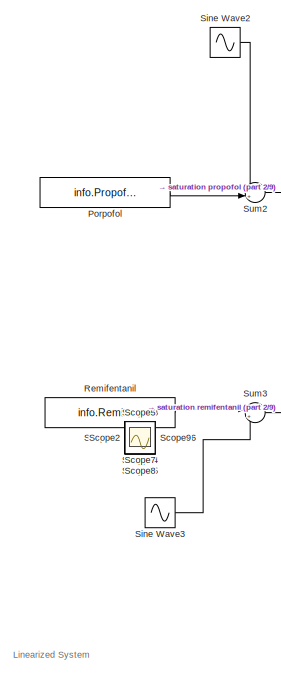
[diagram: root canvas - part 1/9, top left region]
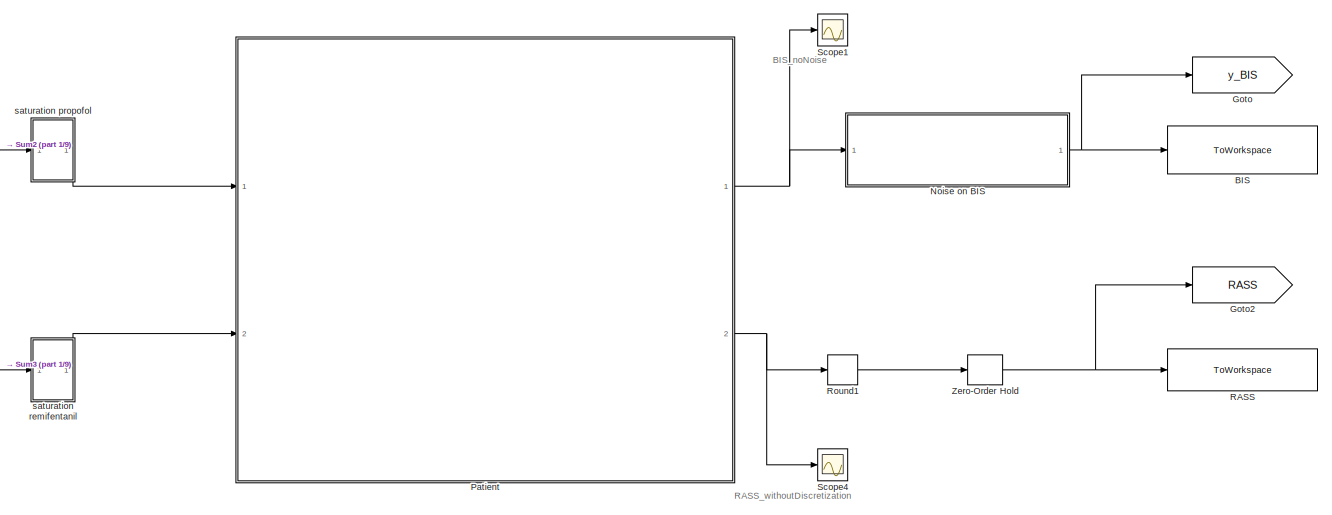
[diagram: root canvas - part 2/9, top right region]
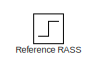
[diagram: root canvas - part 3/9, top left region]
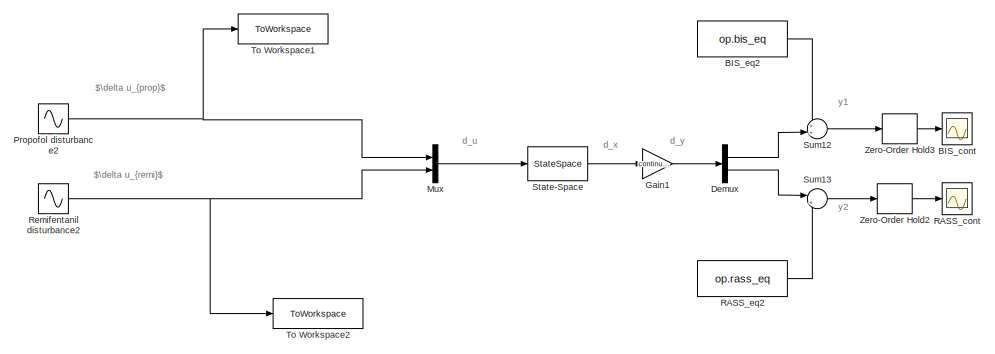
[diagram: root canvas - part 4/9, top center region]
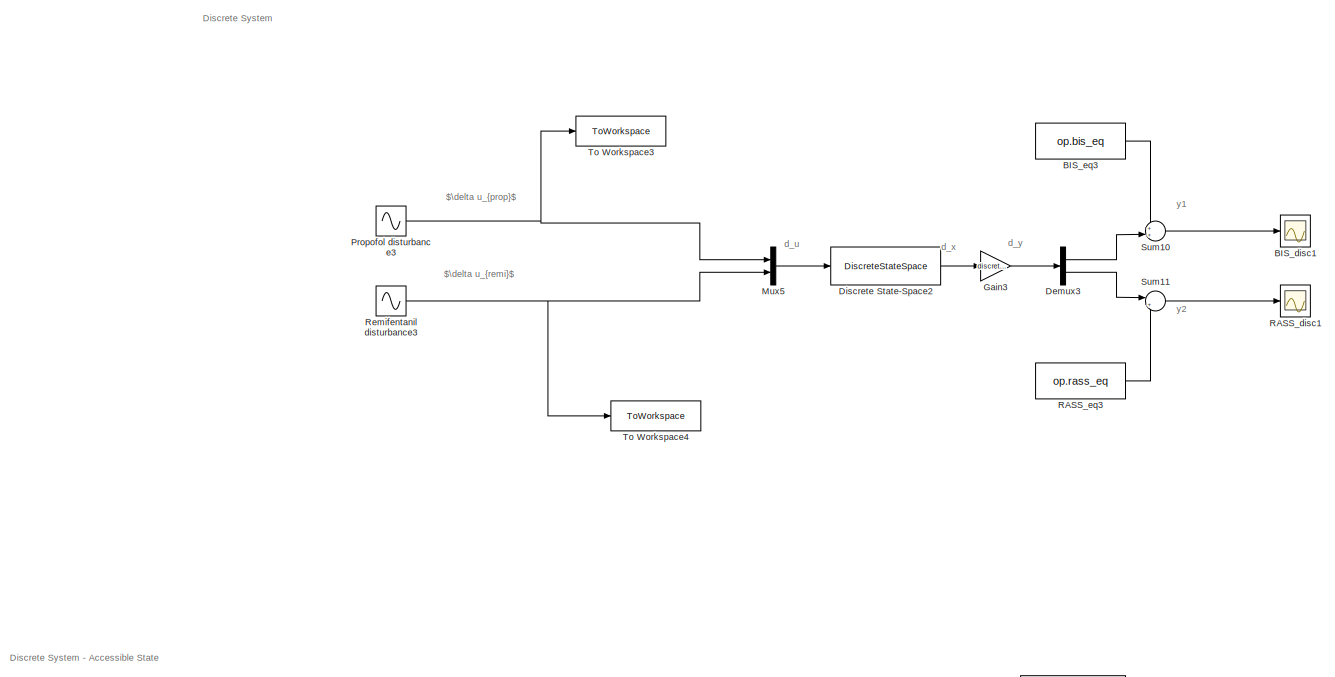
[diagram: root canvas - part 5/9, central region]
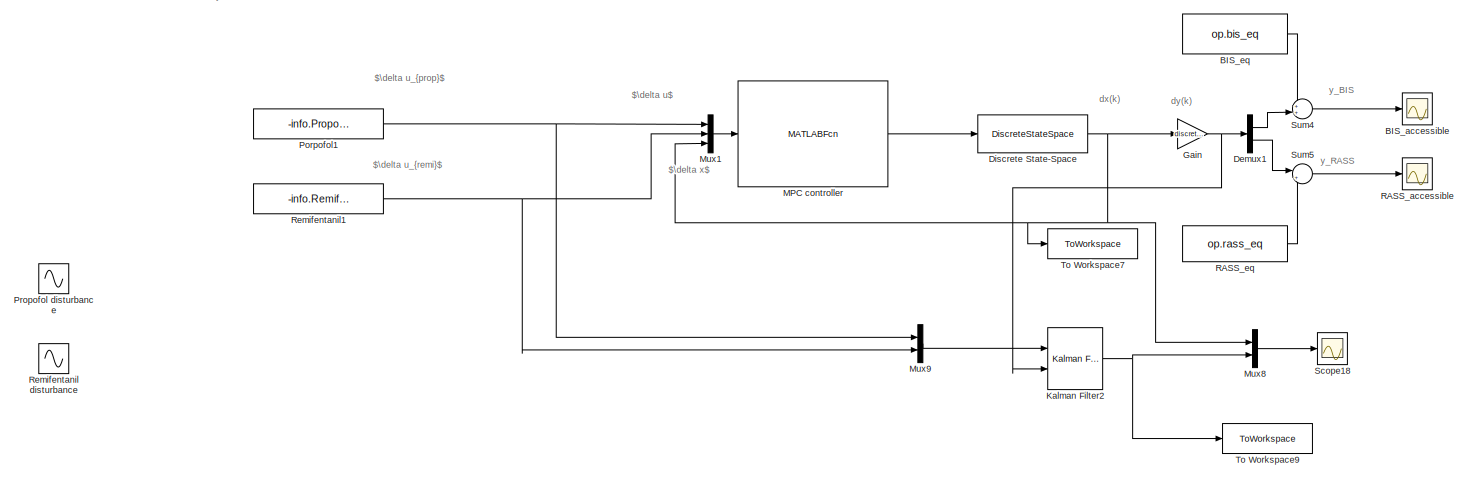
[diagram: root canvas - part 6/9, central region]
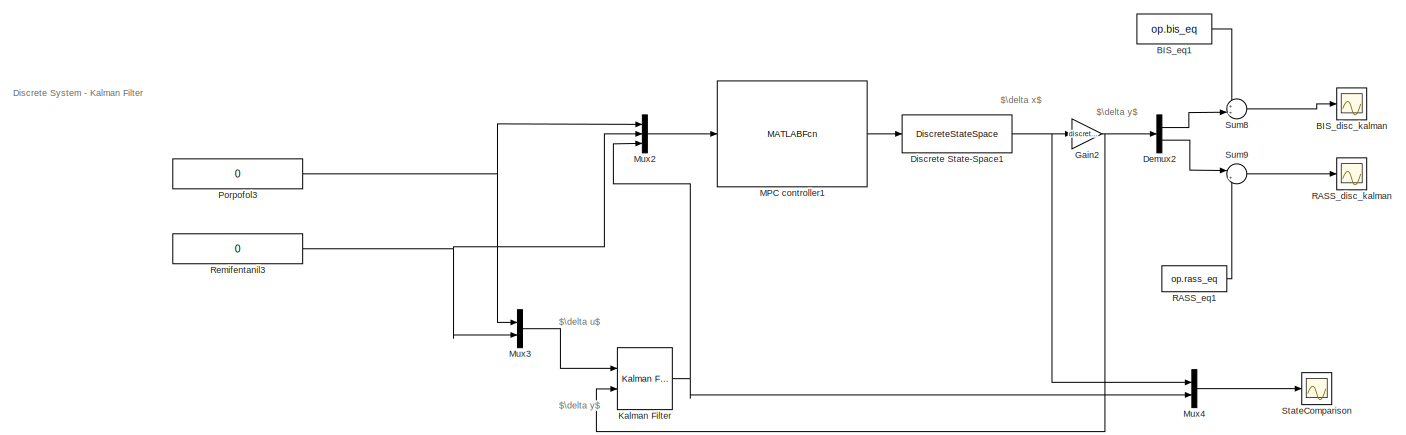
[diagram: root canvas - part 7/9, bottom center region]
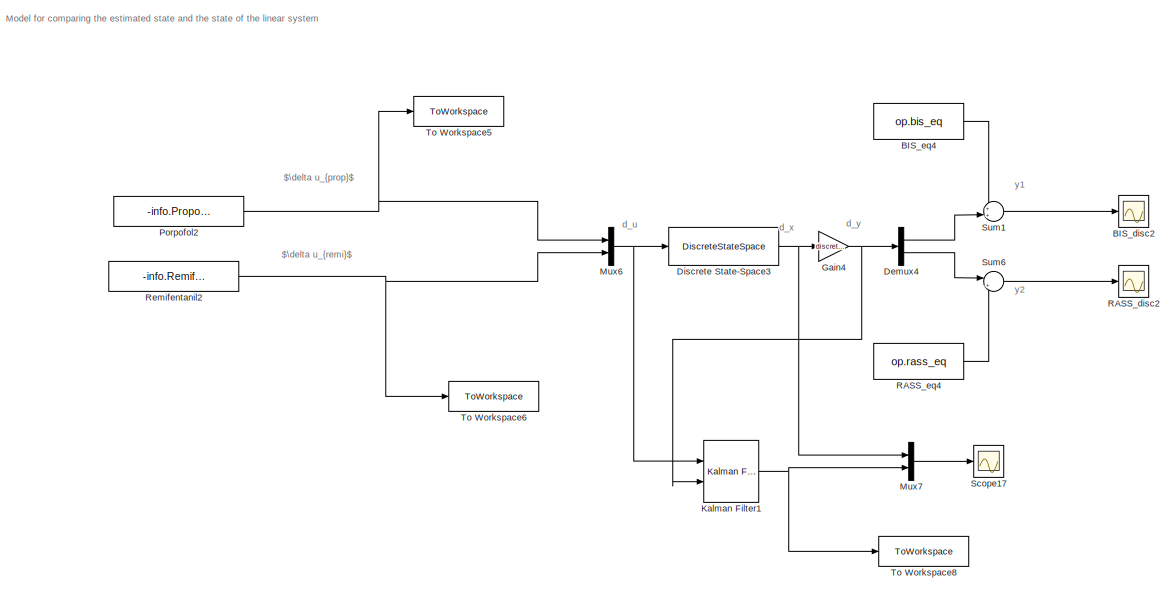
[diagram: root canvas - part 8/9, bottom center region]
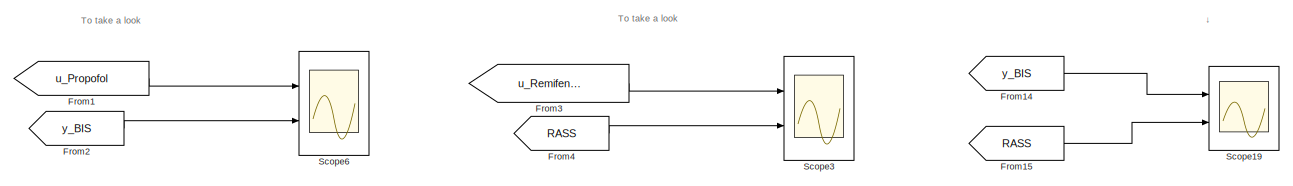
[diagram: root canvas - part 9/9, bottom left region]
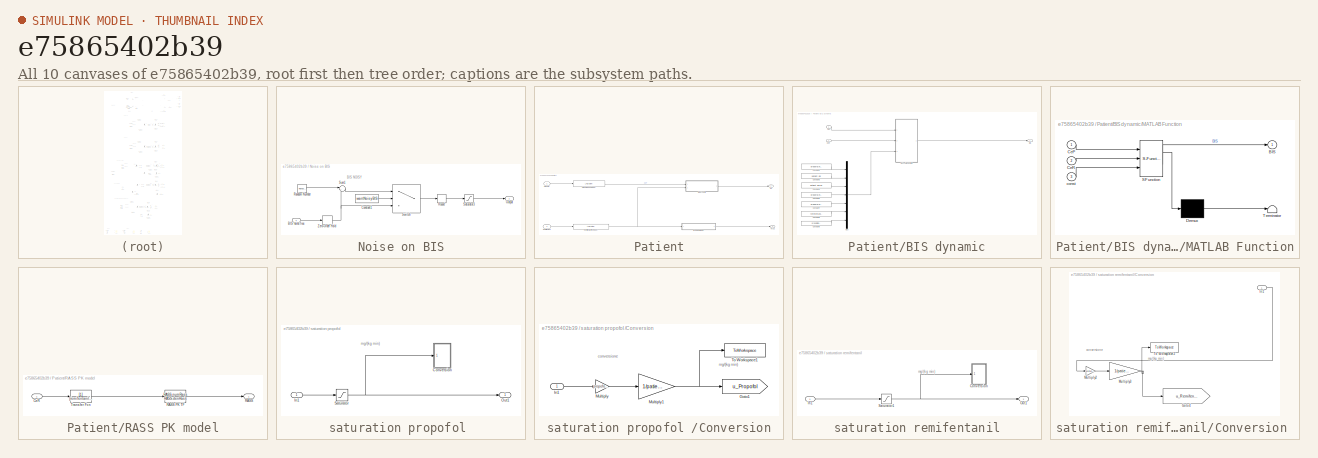
[diagram: thumbnail index - all 10 canvases of the model, root first then tree order]
MODEL slx_e75865402b39
KIND model
CONFIG AbsTol = auto
CONFIG EnableMultiTasking = off
CONFIG FixedStep = 0.1
CONFIG MaxStep = auto
CONFIG MinStep = auto
CONFIG RelTol = 1e-15
CONFIG SampleTimeConstraint = Unconstrained
CONFIG SolverName = ode4
CONFIG StartTime = 0.0
CONFIG StopTime = info.Tsim
BLOCK [ToWorkspace] BIS
  FixptAsFi = on
  MaxDataPoints = inf
  Ports = [1]
  SampleTime = 1
  Save2DSignal = 2-D array (concatenate along first dimension)
  VariableName = BIS_output
BLOCK [Scope] BIS_accessible
  Floating = off
  NumInputPorts = 1
  Ports = [1]
  ScopeSpecificationString = Simulink.scopes.TimeScopeBlockCfg('CurrentConfiguration', extmgr.ConfigurationSet(extmgr.Configuration('Core','General UI',true),extmgr.Configuration('Core','Source UI',true),extmgr.Configuration('Sources','WiredSimulink',true,'DataLoggingVariableName','BIS_accessible','DataLogging',true,'DataLoggingSaveFormat','StructureWithTime'),extmgr.Configuration('Visuals','Time Domain',true,'SerializedDispl...<+1440ch>
BLOCK [Scope] BIS_cont
  Floating = off
  NumInputPorts = 1
  Ports = [1]
  ScopeSpecificationString = Simulink.scopes.TimeScopeBlockCfg('CurrentConfiguration', extmgr.ConfigurationSet(extmgr.Configuration('Core','General UI',true),extmgr.Configuration('Core','Source UI',true),extmgr.Configuration('Sources','WiredSimulink',true,'DataLoggingVariableName','BIS_cont','DataLogging',true,'DataLoggingSaveFormat','StructureWithTime'),extmgr.Configuration('Visuals','Time Domain',true,'SerializedDisplays',{...<+1438ch>
BLOCK [Scope] BIS_disc1
  Floating = off
  NumInputPorts = 1
  Ports = [1]
  ScopeSpecificationString = Simulink.scopes.TimeScopeBlockCfg('CurrentConfiguration', extmgr.ConfigurationSet(extmgr.Configuration('Core','General UI',true),extmgr.Configuration('Core','Source UI',true),extmgr.Configuration('Sources','WiredSimulink',true,'DataLoggingVariableName','BIS_linDisc','DataLogging',true,'DataLoggingSaveFormat','StructureWithTime'),extmgr.Configuration('Visuals','Time Domain',true,'SerializedDisplays...<+1441ch>
BLOCK [Scope] BIS_disc2
  Commented = on
  Floating = off
  NumInputPorts = 1
  Ports = [1]
  ScopeSpecificationString = Simulink.scopes.TimeScopeBlockCfg('CurrentConfiguration', extmgr.ConfigurationSet(extmgr.Configuration('Core','General UI',true),extmgr.Configuration('Core','Source UI',true),extmgr.Configuration('Sources','WiredSimulink',true,'DataLoggingVariableName','aaa','DataLogging',true,'DataLoggingSaveFormat','StructureWithTime'),extmgr.Configuration('Visuals','Time Domain',true,'SerializedDisplays',{struc...<+1421ch>
BLOCK [Scope] BIS_disc_kalman
  Floating = off
  NumInputPorts = 1
  Ports = [1]
  ScopeSpecificationString = Simulink.scopes.TimeScopeBlockCfg('CurrentConfiguration', extmgr.ConfigurationSet(extmgr.Configuration('Core','General UI',true),extmgr.Configuration('Core','Source UI',true),extmgr.Configuration('Sources','WiredSimulink',true,'DataLoggingVariableName','BIS_kalman','DataLogging',true,'DataLoggingSaveFormat','StructureWithTime'),extmgr.Configuration('Visuals','Time Domain',true,'SerializedDisplays'...<+1436ch>
BLOCK [Constant] BIS_eq
  Value = op.bis_eq
BLOCK [Constant] BIS_eq1
  Value = op.bis_eq
BLOCK [Constant] BIS_eq2
  Value = op.bis_eq
BLOCK [Constant] BIS_eq3
  SampleTime = info.Ts
  Value = op.bis_eq
BLOCK [Constant] BIS_eq4
  Commented = on
  SampleTime = info.Ts
  Value = op.bis_eq
BLOCK [Demux] Demux
  Outputs = 2
  Ports = [1, 2]
BLOCK [Demux] Demux1
  Outputs = 2
  Ports = [1, 2]
BLOCK [Demux] Demux2
  Outputs = 2
  Ports = [1, 2]
BLOCK [Demux] Demux3
  Outputs = 2
  Ports = [1, 2]
BLOCK [Demux] Demux4
  Commented = on
  Outputs = 2
  Ports = [1, 2]
BLOCK [DiscreteStateSpace] Discrete State-Space
  A = discreteModel.A
  B = discreteModel.B
  C = eye(size(discreteModel.A))
  D = zeros(size(discreteModel.A,1),size(discreteModel.B,2))
  InitialCondition = [0,0,0,-0.5584,-2,0,0,0,0,0]'
  SampleTime = info.Ts
BLOCK [DiscreteStateSpace] Discrete State-Space1
  A = discreteModel.A
  B = discreteModel.B
  C = eye(size(discreteModel.A))
  D = zeros(size(discreteModel.A,1),size(discreteModel.B,2))
  InitialCondition = [0,0,0,-0.5584,-2,0,0,0,0,0]
  SampleTime = info.Ts
BLOCK [DiscreteStateSpace] Discrete State-Space2
  A = discreteModel.A
  B = discreteModel.B
  C = eye(size(discreteModel.A))
  D = zeros(size(discreteModel.A,1),size(discreteModel.B,2))
  InitialCondition = [0,0,0,-0.5584,-2,0,0,0,0,0]'
  SampleTime = info.Ts
BLOCK [DiscreteStateSpace] Discrete State-Space3
  A = discreteModel.A
  B = discreteModel.B
  C = eye(size(discreteModel.A))
  Commented = on
  D = zeros(size(discreteModel.A,1),size(discreteModel.B,2))
  SampleTime = info.Ts
BLOCK [From] From1
  GotoTag = u_Propofol
  TagVisibility = global
BLOCK [From] From14
  GotoTag = y_BIS
  TagVisibility = global
BLOCK [From] From15
  GotoTag = RASS
  TagVisibility = global
BLOCK [From] From2
  GotoTag = y_BIS
  TagVisibility = global
BLOCK [From] From3
  GotoTag = u_Remifentanil
  TagVisibility = global
BLOCK [From] From4
  GotoTag = RASS
  TagVisibility = global
BLOCK [Gain] Gain
  Gain = discreteModel.C
  Multiplication = Matrix(K*u)
BLOCK [Gain] Gain1
  Gain = continuousModel.C
  Multiplication = Matrix(K*u)
BLOCK [Gain] Gain2
  Gain = discreteModel.C
  Multiplication = Matrix(K*u)
BLOCK [Gain] Gain3
  Gain = discreteModel.C
  Multiplication = Matrix(K*u)
BLOCK [Gain] Gain4
  Commented = on
  Gain = discreteModel.C
  Multiplication = Matrix(K*u)
BLOCK [Goto] Goto
  GotoTag = y_BIS
  TagVisibility = global
BLOCK [Goto] Goto2
  GotoTag = RASS
  TagVisibility = global
BLOCK [Reference] Kalman Filter  REF=ctrlSharedLib/Kalman Filter
  Ports = [2, 1]
  SourceBlock = ctrlSharedLib/Kalman Filter
  SourceProductBaseCode = CT,ID
  SourceType = ctrlKalmanFilter
BLOCK [Reference] Kalman Filter1  REF=ctrlSharedLib/Kalman Filter
  Commented = on
  Ports = [2, 1]
  SourceBlock = ctrlSharedLib/Kalman Filter
  SourceProductBaseCode = CT,ID
  SourceType = ctrlKalmanFilter
BLOCK [Reference] Kalman Filter2  REF=ctrlSharedLib/Kalman Filter
  Ports = [2, 1]
  SourceBlock = ctrlSharedLib/Kalman Filter
  SourceProductBaseCode = CT,ID
  SourceType = ctrlKalmanFilter
BLOCK [MATLABFcn] MPC controller
  MATLABFcn = myMPC_dist(u,condDiscMat,PH)
  OutputDimensions = 2
  Ports = [1, 1]
BLOCK [MATLABFcn] MPC controller1
  MATLABFcn = myMPC_dist(u,kalmDiscMat,PH)
  OutputDimensions = 2
  Ports = [1, 1]
BLOCK [Mux] Mux
  DisplayOption = bar
  Inputs = 2
  Ports = [2, 1]
BLOCK [Mux] Mux1
  DisplayOption = bar
  Inputs = 3
  Ports = [3, 1]
BLOCK [Mux] Mux2
  DisplayOption = bar
  Inputs = 3
  Ports = [3, 1]
BLOCK [Mux] Mux3
  DisplayOption = bar
  Inputs = 2
  Ports = [2, 1]
BLOCK [Mux] Mux4
  DisplayOption = bar
  Inputs = 2
  Ports = [2, 1]
BLOCK [Mux] Mux5
  DisplayOption = bar
  Inputs = 2
  Ports = [2, 1]
BLOCK [Mux] Mux6
  Commented = on
  DisplayOption = bar
  Inputs = 2
  Ports = [2, 1]
BLOCK [Mux] Mux7
  Commented = on
  DisplayOption = bar
  Inputs = 2
  Ports = [2, 1]
BLOCK [Mux] Mux8
  DisplayOption = bar
  Inputs = 2
  Ports = [2, 1]
BLOCK [Mux] Mux9
  DisplayOption = bar
  Inputs = 2
  Ports = [2, 1]
BLOCK [SubSystem] Noise on BIS
  Ports = [1, 1]
  RequestExecContextInheritance = off
BLOCK [Inport] Noise on BIS/BIS noise free
BLOCK [Constant] Noise on BIS/Constant1
  Value = wantNoisyBIS
BLOCK [Outport] Noise on BIS/Output
BLOCK [RandomNumber] Noise on BIS/Random Number
  SampleTime = info.Ts
  Variance = 6.27
BLOCK [Rounding] Noise on BIS/Round
  Operator = round
BLOCK [Saturate] Noise on BIS/Saturator3
  LowerLimit = 0
  UpperLimit = 100
BLOCK [Sum] Noise on BIS/Sum1
  Inputs = |++
  Ports = [2, 1]
BLOCK [Switch] Noise on BIS/Switch
  Criteria = u2 > Threshold
  InputSameDT = off
  SaturateOnIntegerOverflow = off
  Threshold = 0.5
BLOCK [ZeroOrderHold] Noise on BIS/Zero-Order Hold
  SampleTime = info.Ts
BLOCK [SubSystem] Patient
  Ports = [2, 2]
  RequestExecContextInheritance = off
BLOCK [Outport] Patient/BIS
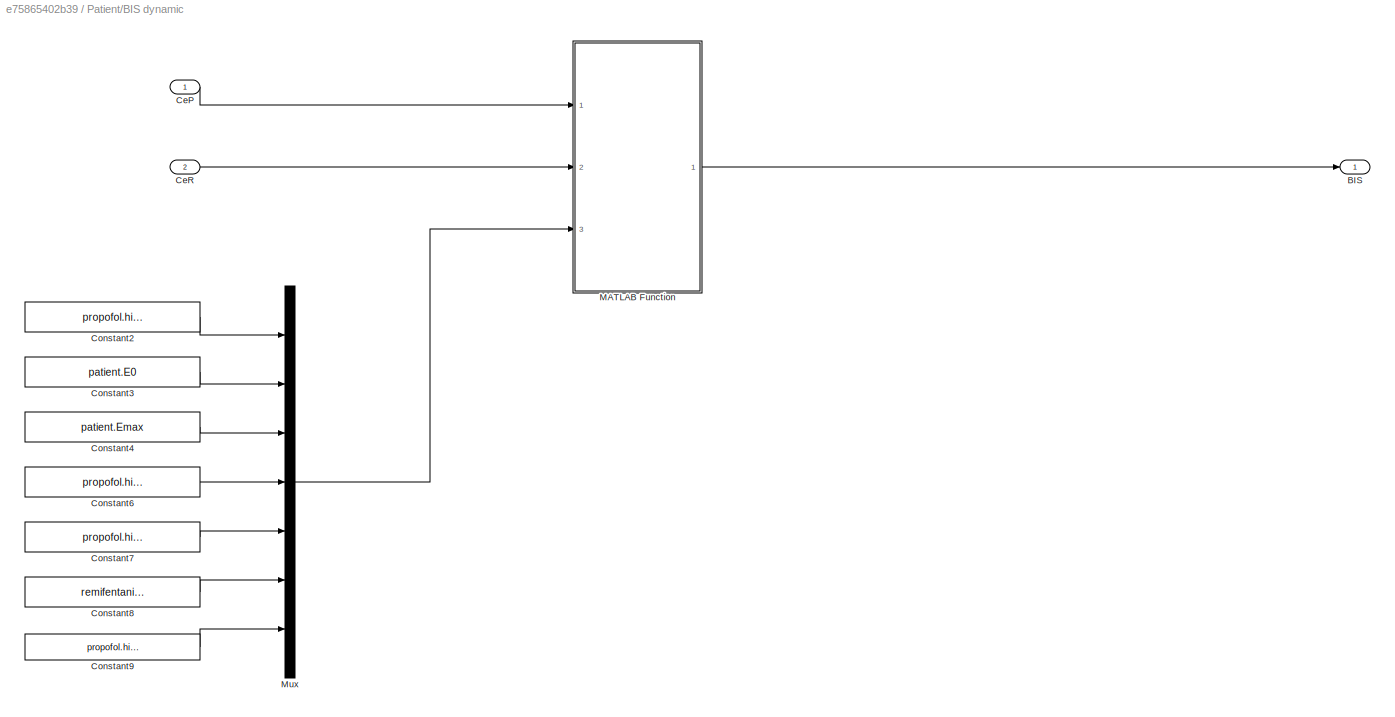
BLOCK [SubSystem] Patient/BIS dynamic
  Ports = [2, 1]
  RequestExecContextInheritance = off
BLOCK [Outport] Patient/BIS dynamic/BIS
BLOCK [Inport] Patient/BIS dynamic/CeP
BLOCK [Inport] Patient/BIS dynamic/CeR
  Port = 2
BLOCK [Constant] Patient/BIS dynamic/Constant2
  Value = propofol.hill_Propofol.beta
BLOCK [Constant] Patient/BIS dynamic/Constant3
  Value = patient.E0
BLOCK [Constant] Patient/BIS dynamic/Constant4
  Value = patient.Emax
BLOCK [Constant] Patient/BIS dynamic/Constant6
  Value = propofol.hill_Propofol.gamma
BLOCK [Constant] Patient/BIS dynamic/Constant7
  Value = propofol.hill_Propofol.C50P
BLOCK [Constant] Patient/BIS dynamic/Constant8
  Value = remifentanil.hill_Remifentanil.C50R
BLOCK [Constant] Patient/BIS dynamic/Constant9
  Value = propofol.hill_Propofol.sigma
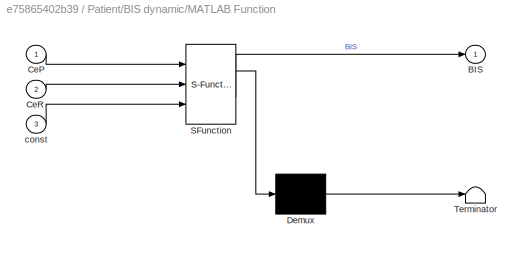
BLOCK [SubSystem] Patient/BIS dynamic/MATLAB Function
  ErrorFcn = Stateflow.Translate.translate
  PermitHierarchicalResolution = ExplicitOnly
  Ports = [3, 1]
  RequestExecContextInheritance = off
  SFBlockType = MATLAB Function
  TreatAsAtomicUnit = on
BLOCK [Demux] Patient/BIS dynamic/MATLAB Function/ Demux 
  Outputs = 1
  Ports = [1, 1]
BLOCK [S-Function] Patient/BIS dynamic/MATLAB Function/ SFunction 
  EnableBusSupport = on
  FunctionName = sf_sfun
  PortCounts = [3 2]
  Ports = [3, 2]
  SFcnIsStateOwnerBlock = off
  SFunctionDeploymentMode = off
  Tag = Stateflow S-Function 2
BLOCK [Terminator] Patient/BIS dynamic/MATLAB Function/ Terminator 
BLOCK [Outport] Patient/BIS dynamic/MATLAB Function/BIS
BLOCK [Inport] Patient/BIS dynamic/MATLAB Function/CeP
BLOCK [Inport] Patient/BIS dynamic/MATLAB Function/CeR
  Port = 2
BLOCK [Inport] Patient/BIS dynamic/MATLAB Function/const
  Port = 3
BLOCK [Mux] Patient/BIS dynamic/Mux
  DisplayOption = bar
  Inputs = 7
  Ports = [7, 1]
BLOCK [Inport] Patient/Propofol
BLOCK [Reference] Patient/Propofol SS PK model  REF=cstblocks/LTI System
  Ports = [1, 1]
  SourceBlock = cstblocks/LTI System
  SourceProductBaseCode = CT
  SourceType = LTI Block
BLOCK [Outport] Patient/RASS
  Port = 2
BLOCK [SubSystem] Patient/RASS PK model
  Ports = [1, 1]
  RequestExecContextInheritance = off
BLOCK [Inport] Patient/RASS PK model/CeR
BLOCK [Outport] Patient/RASS PK model/RASS
BLOCK [TransferFcn] Patient/RASS PK model/RASS PK TF
  Denominator = RASS.denRass
  Numerator = RASS.numRass
BLOCK [TransferFcn] Patient/RASS PK model/Transfer Fcn
  Denominator = [remifentanil.k1r*15 remifentanil.k0r]
BLOCK [Inport] Patient/Remifentanil
  Port = 2
BLOCK [Reference] Patient/Remifentanil PK model  REF=cstblocks/LTI System
  Ports = [1, 1]
  SourceBlock = cstblocks/LTI System
  SourceProductBaseCode = CT
  SourceType = LTI Block
BLOCK [Constant] Porpofol
  SampleTime = info.Ts
  Value = info.PropofolDose
BLOCK [Constant] Porpofol1
  SampleTime = info.Ts
  Value = -info.PropofolDose
BLOCK [Constant] Porpofol2
  Commented = on
  SampleTime = info.Ts
  Value = -info.PropofolDose
BLOCK [Constant] Porpofol3
  SampleTime = info.Ts
  Value = 0
BLOCK [Sin] Propofol disturbance
  Amplitude = 0.3*op.propofol_eq
  Commented = on
  Frequency = 1/500
  Ports = [0, 1]
  SampleTime = info.Ts
BLOCK [Sin] Propofol disturbance2
  Amplitude = 0.3*op.propofol_eq
  Frequency = 1/500
  Ports = [0, 1]
  SampleTime = 0
BLOCK [Sin] Propofol disturbance3
  Amplitude = 0.3*op.propofol_eq
  Frequency = 1/500
  Ports = [0, 1]
  SampleTime = info.Ts
BLOCK [ToWorkspace] RASS
  FixptAsFi = on
  MaxDataPoints = inf
  Ports = [1]
  SampleTime = 1
  Save2DSignal = 2-D array (concatenate along first dimension)
  VariableName = RASS_output
BLOCK [Scope] RASS_accessible
  Floating = off
  NumInputPorts = 1
  Ports = [1]
  ScopeSpecificationString = Simulink.scopes.TimeScopeBlockCfg('CurrentConfiguration', extmgr.ConfigurationSet(extmgr.Configuration('Core','General UI',true),extmgr.Configuration('Core','Source UI',true),extmgr.Configuration('Sources','WiredSimulink',true,'DataLoggingVariableName','RASS_accessible','DataLogging',true,'DataLoggingSaveFormat','StructureWithTime'),extmgr.Configuration('Visuals','Time Domain',true,'SerializedDisp...<+1499ch>
BLOCK [Scope] RASS_cont
  Floating = off
  NumInputPorts = 1
  Ports = [1]
  ScopeSpecificationString = Simulink.scopes.TimeScopeBlockCfg('CurrentConfiguration', extmgr.ConfigurationSet(extmgr.Configuration('Core','General UI',true),extmgr.Configuration('Core','Source UI',true),extmgr.Configuration('Sources','WiredSimulink',true,'DataLoggingVariableName','RASS_cont','DataLogging',true,'DataLoggingSaveFormat','StructureWithTime'),extmgr.Configuration('Visuals','Time Domain',true,'SerializedDisplays',...<+1428ch>
BLOCK [Scope] RASS_disc1
  Floating = off
  NumInputPorts = 1
  Ports = [1]
  ScopeSpecificationString = Simulink.scopes.TimeScopeBlockCfg('CurrentConfiguration', extmgr.ConfigurationSet(extmgr.Configuration('Core','General UI',true),extmgr.Configuration('Core','Source UI',true),extmgr.Configuration('Sources','WiredSimulink',true,'DataLoggingVariableName','RASS_linDisc','DataLogging',true,'DataLoggingSaveFormat','StructureWithTime'),extmgr.Configuration('Visuals','Time Domain',true,'SerializedDisplay...<+1442ch>
BLOCK [Scope] RASS_disc2
  Commented = on
  Floating = off
  NumInputPorts = 1
  Ports = [1]
  ScopeSpecificationString = Simulink.scopes.TimeScopeBlockCfg('CurrentConfiguration', extmgr.ConfigurationSet(extmgr.Configuration('Core','General UI',true),extmgr.Configuration('Core','Source UI',true),extmgr.Configuration('Sources','WiredSimulink',true,'DataLoggingVariableName','bbb','DataLogging',true,'DataLoggingSaveFormat','StructureWithTime'),extmgr.Configuration('Visuals','Time Domain',true,'SerializedDisplays',{struc...<+1421ch>
BLOCK [Scope] RASS_disc_kalman
  Floating = off
  NumInputPorts = 1
  Ports = [1]
  ScopeSpecificationString = Simulink.scopes.TimeScopeBlockCfg('CurrentConfiguration', extmgr.ConfigurationSet(extmgr.Configuration('Core','General UI',true),extmgr.Configuration('Core','Source UI',true),extmgr.Configuration('Sources','WiredSimulink',true,'DataLoggingVariableName','RASS_kalman','DataLogging',true,'DataLoggingSaveFormat','StructureWithTime'),extmgr.Configuration('Visuals','Time Domain',true,'SerializedDisplays...<+1427ch>
BLOCK [Constant] RASS_eq
  Value = op.rass_eq
BLOCK [Constant] RASS_eq1
  Value = op.rass_eq
BLOCK [Constant] RASS_eq2
  Value = op.rass_eq
BLOCK [Constant] RASS_eq3
  SampleTime = info.Ts
  Value = op.rass_eq
BLOCK [Constant] RASS_eq4
  Commented = on
  SampleTime = info.Ts
  Value = op.rass_eq
BLOCK [Step] Reference RASS
  After = info.desired_RASS
  Before = info.initial_RASS
  Commented = on
  SampleTime = info.Ts
  Time = info.T_induction
BLOCK [Constant] Remifentanil
  SampleTime = info.Ts
  Value = info.RemifentanilDose
BLOCK [Sin] Remifentanil disturbance
  Amplitude = 0.3*op.remifentanil_eq
  Commented = on
  Frequency = 1/700
  Ports = [0, 1]
  SampleTime = info.Ts
BLOCK [Sin] Remifentanil disturbance2
  Amplitude = 0.3*op.remifentanil_eq
  Frequency = 1/700
  Ports = [0, 1]
  SampleTime = 0
BLOCK [Sin] Remifentanil disturbance3
  Amplitude = 0.3*op.remifentanil_eq
  Frequency = 1/700
  Ports = [0, 1]
  SampleTime = info.Ts
BLOCK [Constant] Remifentanil1
  SampleTime = info.Ts
  Value = -info.RemifentanilDose
BLOCK [Constant] Remifentanil2
  Commented = on
  SampleTime = info.Ts
  Value = -info.RemifentanilDose
BLOCK [Constant] Remifentanil3
  SampleTime = info.Ts
  Value = 0
BLOCK [Rounding] Round1
  Operator = round
BLOCK [Scope] Scope
  Floating = off
  IOType = viewer
  NumInputPorts = 1
  Ports = []
  ScopeSpecificationString = Simulink.scopes.TimeScopeBlockCfg('CurrentConfiguration', extmgr.ConfigurationSet(extmgr.Configuration('Core','General UI',true),extmgr.Configuration('Core','Source UI',true),extmgr.Configuration('Sources','WiredSimulink',true,'DataLoggingVariableName','ScopeData2'),extmgr.Configuration('Visuals','Time Domain',true),extmgr.Configuration('Tools','Plot Navigation',true),extmgr.Configuration('Tools',...<+58ch>
BLOCK [Scope] Scope1
  Floating = off
  NumInputPorts = 1
  Ports = [1]
  ScopeSpecificationString = Simulink.scopes.TimeScopeBlockCfg('CurrentConfiguration', extmgr.ConfigurationSet(extmgr.Configuration('Core','General UI',true),extmgr.Configuration('Core','Source UI',true),extmgr.Configuration('Sources','WiredSimulink',true,'DataLoggingVariableName','BIS_noNoise','DataLogging',true,'DataLoggingSaveFormat','StructureWithTime'),extmgr.Configuration('Visuals','Time Domain',true,'SerializedDisplays...<+1444ch>
BLOCK [Scope] Scope10
  Floating = off
  IOType = viewer
  NumInputPorts = 1
  Ports = []
  ScopeSpecificationString = Simulink.scopes.TimeScopeBlockCfg('CurrentConfiguration', extmgr.ConfigurationSet(extmgr.Configuration('Core','General UI',true),extmgr.Configuration('Core','Source UI',true),extmgr.Configuration('Sources','WiredSimulink',true,'DataLoggingVariableName','ScopeData1'),extmgr.Configuration('Visuals','Time Domain',true,'SerializedDisplays',{struct('MinYLimReal','-5.26886','MaxYLimReal','0.58543','YLab...<+1368ch>
BLOCK [Scope] Scope11
  Floating = off
  IOType = viewer
  NumInputPorts = 1
  Ports = []
  ScopeSpecificationString = Simulink.scopes.TimeScopeBlockCfg('CurrentConfiguration', extmgr.ConfigurationSet(extmgr.Configuration('Core','General UI',true),extmgr.Configuration('Core','Source UI',true),extmgr.Configuration('Sources','WiredSimulink',true,'DataLoggingVariableName','ScopeData2'),extmgr.Configuration('Visuals','Time Domain',true,'SerializedDisplays',{struct('MinYLimReal','5.22642','MaxYLimReal','8.96225','YLabe...<+1421ch>
BLOCK [Scope] Scope12
  Floating = off
  IOType = viewer
  NumInputPorts = 1
  Ports = []
  ScopeSpecificationString = Simulink.scopes.TimeScopeBlockCfg('CurrentConfiguration', extmgr.ConfigurationSet(extmgr.Configuration('Core','General UI',true),extmgr.Configuration('Core','Source UI',true),extmgr.Configuration('Sources','WiredSimulink',true,'DataLoggingVariableName','ScopeData3'),extmgr.Configuration('Visuals','Time Domain',true,'SerializedDisplays',{struct('MinYLimReal','64.8','MaxYLimReal','81.68889','YLabelR...<+1435ch>
BLOCK [Scope] Scope13
  Floating = off
  IOType = viewer
  NumInputPorts = 1
  Ports = []
  ScopeSpecificationString = Simulink.scopes.TimeScopeBlockCfg('CurrentConfiguration', extmgr.ConfigurationSet(extmgr.Configuration('Core','General UI',true),extmgr.Configuration('Core','Source UI',true),extmgr.Configuration('Sources','WiredSimulink',true,'DataLoggingVariableName','ScopeData4'),extmgr.Configuration('Visuals','Time Domain',true,'SerializedDisplays',{struct('MinYLimReal','2.13004','MaxYLimReal','97.54111','YLab...<+1370ch>
BLOCK [Scope] Scope14
  Floating = off
  IOType = viewer
  NumInputPorts = 1
  Ports = []
  ScopeSpecificationString = Simulink.scopes.TimeScopeBlockCfg('CurrentConfiguration', extmgr.ConfigurationSet(extmgr.Configuration('Core','General UI',true),extmgr.Configuration('Core','Source UI',true),extmgr.Configuration('Sources','WiredSimulink',true,'DataLoggingVariableName','ScopeData1'),extmgr.Configuration('Visuals','Time Domain',true,'SerializedDisplays',{struct('MinYLimReal','45.32083','MaxYLimReal','96.07546','YLa...<+1381ch>
BLOCK [Scope] Scope15
  Floating = off
  IOType = viewer
  NumInputPorts = 1
  Ports = []
  ScopeSpecificationString = Simulink.scopes.TimeScopeBlockCfg('CurrentConfiguration', extmgr.ConfigurationSet(extmgr.Configuration('Core','General UI',true),extmgr.Configuration('Core','Source UI',true),extmgr.Configuration('Sources','WiredSimulink',true,'DataLoggingVariableName','ScopeData2'),extmgr.Configuration('Visuals','Time Domain',true,'SerializedDisplays',{struct('MinYLimReal','59.51732','MaxYLimReal','88.94252','YLa...<+1425ch>
BLOCK [Scope] Scope16
  Floating = off
  IOType = viewer
  NumInputPorts = 1
  Ports = []
  ScopeSpecificationString = Simulink.scopes.TimeScopeBlockCfg('CurrentConfiguration', extmgr.ConfigurationSet(extmgr.Configuration('Core','General UI',true),extmgr.Configuration('Core','Source UI',true),extmgr.Configuration('Sources','WiredSimulink',true,'DataLoggingVariableName','ScopeData3'),extmgr.Configuration('Visuals','Time Domain',true,'SerializedDisplays',{struct('MinYLimReal','5.22642','MaxYLimReal','8.96225','YLabe...<+1384ch>
BLOCK [Scope] Scope17
  Commented = on
  Floating = off
  NumInputPorts = 1
  Ports = [1]
  ScopeSpecificationString = Simulink.scopes.TimeScopeBlockCfg('CurrentConfiguration', extmgr.ConfigurationSet(extmgr.Configuration('Core','General UI',true),extmgr.Configuration('Core','Source UI',true),extmgr.Configuration('Sources','WiredSimulink',true,'DataLoggingVariableName','Comparison','DataLogging',true,'DataLoggingSaveFormat','StructureWithTime'),extmgr.Configuration('Visuals','Time Domain',true,'SerializedDisplays'...<+1426ch>
BLOCK [Scope] Scope18
  Floating = off
  NumInputPorts = 1
  Ports = [1]
  ScopeSpecificationString = Simulink.scopes.TimeScopeBlockCfg('CurrentConfiguration', extmgr.ConfigurationSet(extmgr.Configuration('Core','General UI',true),extmgr.Configuration('Core','Source UI',true),extmgr.Configuration('Sources','WiredSimulink',true,'DataLoggingVariableName','Comparison','DataLogging',true,'DataLoggingSaveFormat','StructureWithTime'),extmgr.Configuration('Visuals','Time Domain',true,'SerializedDisplays'...<+1868ch>
BLOCK [Scope] Scope19
  Floating = off
  NumInputPorts = 2
  Ports = [2]
  ScopeSpecificationString = Simulink.scopes.TimeScopeBlockCfg('CurrentConfiguration', extmgr.ConfigurationSet(extmgr.Configuration('Core','General UI',true,'FigureColor',[1 1 1]),extmgr.Configuration('Core','Source UI',true),extmgr.Configuration('Sources','WiredSimulink',true,'DataLoggingVariableName','ScopeData1'),extmgr.Configuration('Visuals','Time Domain',true,'SerializedDisplays',{struct('MinYLimReal','44.875','MaxYLimR...<+2881ch>
BLOCK [Scope] Scope2
  Floating = off
  IOType = viewer
  NumInputPorts = 1
  Ports = []
  ScopeSpecificationString = Simulink.scopes.TimeScopeBlockCfg('CurrentConfiguration', extmgr.ConfigurationSet(extmgr.Configuration('Core','General UI',true),extmgr.Configuration('Core','Source UI',true),extmgr.Configuration('Sources','WiredSimulink',true,'DataLoggingVariableName','ScopeData5'),extmgr.Configuration('Visuals','Time Domain',true,'SerializedDisplays',{struct('MinYLimReal','45.32083','MaxYLimReal','96.07546','YLa...<+1420ch>
BLOCK [Scope] Scope3
  Floating = off
  NumInputPorts = 2
  Ports = [2]
  ScopeSpecificationString = Simulink.scopes.TimeScopeBlockCfg('CurrentConfiguration', extmgr.ConfigurationSet(extmgr.Configuration('Core','General UI',true,'FigureColor',[1 1 1]),extmgr.Configuration('Core','Source UI',true),extmgr.Configuration('Sources','WiredSimulink',true,'DataLoggingVariableName','ScopeData1','DataLogging',true,'DataLoggingSaveFormat','StructureWithTime'),extmgr.Configuration('Visuals','Time Domain',tru...<+2283ch>
BLOCK [Scope] Scope4
  Floating = off
  NumInputPorts = 1
  Ports = [1]
  ScopeSpecificationString = Simulink.scopes.TimeScopeBlockCfg('CurrentConfiguration', extmgr.ConfigurationSet(extmgr.Configuration('Core','General UI',true),extmgr.Configuration('Core','Source UI',true),extmgr.Configuration('Sources','WiredSimulink',true,'DataLoggingVariableName','RASS_withoutDiscretization','DataLogging',true,'DataLoggingSaveFormat','StructureWithTime'),extmgr.Configuration('Visuals','Time Domain',true,'Ser...<+1447ch>
BLOCK [Scope] Scope5
  Floating = off
  IOType = viewer
  NumInputPorts = 1
  Ports = []
  ScopeSpecificationString = Simulink.scopes.TimeScopeBlockCfg('CurrentConfiguration', extmgr.ConfigurationSet(extmgr.Configuration('Core','General UI',true),extmgr.Configuration('Core','Source UI',true),extmgr.Configuration('Sources','WiredSimulink',true,'DataLoggingVariableName','ScopeData1'),extmgr.Configuration('Visuals','Time Domain',true,'SerializedDisplays',{struct('MinYLimReal','3.27171','MaxYLimReal','20.19988','YLab...<+1437ch>
BLOCK [Scope] Scope6
  Floating = off
  NumInputPorts = 2
  Ports = [2]
  ScopeSpecificationString = Simulink.scopes.TimeScopeBlockCfg('CurrentConfiguration', extmgr.ConfigurationSet(extmgr.Configuration('Core','General UI',true,'FigureColor',[1 1 1]),extmgr.Configuration('Core','Source UI',true),extmgr.Configuration('Sources','WiredSimulink',true,'DataLoggingVariableName','ScopeData6','DataLogging',true,'DataLoggingSaveFormat','StructureWithTime'),extmgr.Configuration('Visuals','Time Domain',tru...<+2285ch>
BLOCK [Scope] Scope7
  Floating = off
  IOType = viewer
  NumInputPorts = 1
  Ports = []
  ScopeSpecificationString = Simulink.scopes.TimeScopeBlockCfg('CurrentConfiguration', extmgr.ConfigurationSet(extmgr.Configuration('Core','General UI',true),extmgr.Configuration('Core','Source UI',true),extmgr.Configuration('Sources','WiredSimulink',true,'DataLoggingVariableName','ScopeData1'),extmgr.Configuration('Visuals','Time Domain',true,'SerializedDisplays',{struct('MinYLimReal','-0.06132','MaxYLimReal','0.55189','YLab...<+1395ch>
BLOCK [Scope] Scope8
  Floating = off
  IOType = viewer
  NumInputPorts = 1
  Ports = []
  ScopeSpecificationString = Simulink.scopes.TimeScopeBlockCfg('CurrentConfiguration', extmgr.ConfigurationSet(extmgr.Configuration('Core','General UI',true),extmgr.Configuration('Core','Source UI',true),extmgr.Configuration('Sources','WiredSimulink',true,'DataLoggingVariableName','ScopeData1'),extmgr.Configuration('Visuals','Time Domain',true,'SerializedDisplays',{struct('MinYLimReal','-0.69682','MaxYLimReal','6.27135','YLab...<+1406ch>
BLOCK [Scope] Scope9
  Floating = off
  IOType = viewer
  NumInputPorts = 1
  Ports = []
  ScopeSpecificationString = Simulink.scopes.TimeScopeBlockCfg('CurrentConfiguration', extmgr.ConfigurationSet(extmgr.Configuration('Core','General UI',true),extmgr.Configuration('Core','Source UI',true),extmgr.Configuration('Sources','WiredSimulink',true,'DataLoggingVariableName','ScopeData2'),extmgr.Configuration('Visuals','Time Domain',true,'SerializedDisplays',{struct('MinYLimReal','-0.59486','MaxYLimReal','5.35371','YLab...<+1436ch>
BLOCK [Sin] Sine Wave2
  Amplitude = 0.3*op.propofol_eq
  Frequency = 1/500
  Ports = [0, 1]
  SampleTime = 0
BLOCK [Sin] Sine Wave3
  Amplitude = 0.3*op.remifentanil_eq
  Frequency = 1/700
  Ports = [0, 1]
  SampleTime = 0
BLOCK [StateSpace] State-Space
  A = continuousModel.A
  B = continuousModel.B
  C = eye(size(continuousModel.A))
  D = zeros(size(continuousModel.A,1),size(continuousModel.B,2))
  InitialCondition = [0,0,0,-0.5584,-2,0,0,0,0,0]'
  Ports = [1, 1]
BLOCK [Scope] StateComparison
  Floating = off
  NumInputPorts = 1
  Ports = [1]
  ScopeSpecificationString = Simulink.scopes.TimeScopeBlockCfg('CurrentConfiguration', extmgr.ConfigurationSet(extmgr.Configuration('Core','General UI',true),extmgr.Configuration('Core','Source UI',true),extmgr.Configuration('Sources','WiredSimulink',true,'DataLogging',true,'DataLoggingSaveFormat','StructureWithTime','DataLoggingVariableName','StateComparison'),extmgr.Configuration('Visuals','Time Domain',true,'SerializedDisp...<+1925ch>
BLOCK [Sum] Sum1
  Commented = on
  Inputs = ++|
  Ports = [2, 1]
BLOCK [Sum] Sum10
  Inputs = ++|
  Ports = [2, 1]
BLOCK [Sum] Sum11
  Inputs = |++
  Ports = [2, 1]
BLOCK [Sum] Sum12
  Inputs = ++|
  Ports = [2, 1]
BLOCK [Sum] Sum13
  Inputs = |++
  Ports = [2, 1]
BLOCK [Sum] Sum2
  Inputs = ++|
  Ports = [2, 1]
BLOCK [Sum] Sum3
  Inputs = |++
  Ports = [2, 1]
BLOCK [Sum] Sum4
  Inputs = ++|
  Ports = [2, 1]
BLOCK [Sum] Sum5
  Inputs = |++
  Ports = [2, 1]
BLOCK [Sum] Sum6
  Commented = on
  Inputs = |++
  Ports = [2, 1]
BLOCK [Sum] Sum8
  Inputs = ++|
  Ports = [2, 1]
BLOCK [Sum] Sum9
  Inputs = |++
  Ports = [2, 1]
BLOCK [ToWorkspace] To Workspace1
  FixptAsFi = on
  MaxDataPoints = inf
  Ports = [1]
  SampleTime = -1
  Save2DSignal = 2-D array (concatenate along first dimension)
  SaveFormat = Structure With Time
  VariableName = u_Propofol_cont
BLOCK [ToWorkspace] To Workspace2
  FixptAsFi = on
  MaxDataPoints = inf
  Ports = [1]
  SampleTime = -1
  Save2DSignal = 2-D array (concatenate along first dimension)
  SaveFormat = Structure With Time
  VariableName = u_Remifentanil_cont
BLOCK [ToWorkspace] To Workspace3
  FixptAsFi = on
  MaxDataPoints = inf
  Ports = [1]
  SampleTime = info.Ts
  Save2DSignal = 2-D array (concatenate along first dimension)
  SaveFormat = Structure With Time
  VariableName = u_Propofol_disc
BLOCK [ToWorkspace] To Workspace4
  FixptAsFi = on
  MaxDataPoints = inf
  Ports = [1]
  SampleTime = info.Ts
  Save2DSignal = 2-D array (concatenate along first dimension)
  SaveFormat = Structure With Time
  VariableName = u_Remifentanil_disc
BLOCK [ToWorkspace] To Workspace5
  Commented = on
  FixptAsFi = on
  MaxDataPoints = inf
  Ports = [1]
  SampleTime = info.Ts
  Save2DSignal = 2-D array (concatenate along first dimension)
  SaveFormat = Structure With Time
  VariableName = u_Propofol_disc1
BLOCK [ToWorkspace] To Workspace6
  Commented = on
  FixptAsFi = on
  MaxDataPoints = inf
  Ports = [1]
  SampleTime = info.Ts
  Save2DSignal = 2-D array (concatenate along first dimension)
  SaveFormat = Structure With Time
  VariableName = u_Remifentanil_disc1
BLOCK [ToWorkspace] To Workspace7
  FixptAsFi = on
  MaxDataPoints = inf
  Ports = [1]
  SampleTime = -1
  SaveFormat = Structure With Time
  VariableName = accesibleState_dx
BLOCK [ToWorkspace] To Workspace8
  Commented = on
  FixptAsFi = on
  MaxDataPoints = inf
  Ports = [1]
  SampleTime = -1
  SaveFormat = Structure With Time
  VariableName = KalmanState_dx
BLOCK [ToWorkspace] To Workspace9
  FixptAsFi = on
  MaxDataPoints = inf
  Ports = [1]
  SampleTime = -1
  SaveFormat = Structure With Time
  VariableName = KalmanState_dx
BLOCK [ZeroOrderHold] Zero-Order Hold
  SampleTime = info.Ts
BLOCK [ZeroOrderHold] Zero-Order Hold2
  SampleTime = info.Ts
BLOCK [ZeroOrderHold] Zero-Order Hold3
  SampleTime = info.Ts
BLOCK [SubSystem] saturation propofol 
  Ports = [1, 1]
  RequestExecContextInheritance = off
BLOCK [SubSystem] saturation propofol /Conversion
  Ports = [1]
  RequestExecContextInheritance = off
BLOCK [Goto] saturation propofol /Conversion/Goto1
  GotoTag = u_Propofol
  TagVisibility = global
BLOCK [Inport] saturation propofol /Conversion/In1
BLOCK [Gain] saturation propofol /Conversion/Multiply
  Gain = propofol.hill_Propofol .V1p
BLOCK [Gain] saturation propofol /Conversion/Multiply1
  Gain = 1/patient.weight
BLOCK [ToWorkspace] saturation propofol /Conversion/To Workspace1
  FixptAsFi = on
  MaxDataPoints = inf
  Ports = [1]
  SampleTime = -1
  Save2DSignal = 2-D array (concatenate along first dimension)
  SaveFormat = Structure With Time
  VariableName = u_Propofol
BLOCK [Inport] saturation propofol /In1
BLOCK [Outport] saturation propofol /Out1
BLOCK [Saturate] saturation propofol /Saturator
  LowerLimit = 0
  UpperLimit = 5
BLOCK [SubSystem] saturation remifentanil
  Ports = [1, 1]
  RequestExecContextInheritance = off
BLOCK [SubSystem] saturation remifentanil/Conversion 
  Ports = [1]
  RequestExecContextInheritance = off
BLOCK [Goto] saturation remifentanil/Conversion /Goto4
  GotoTag = u_Remifentanil
  TagVisibility = global
BLOCK [Inport] saturation remifentanil/Conversion /In1
BLOCK [Gain] saturation remifentanil/Conversion /Multiply2
  Gain = remifentanil.hill_Remifentanil.V1r
BLOCK [Gain] saturation remifentanil/Conversion /Multiply3
  Gain = 1/patient.weight
BLOCK [ToWorkspace] saturation remifentanil/Conversion /To Workspace2
  FixptAsFi = on
  MaxDataPoints = inf
  Ports = [1]
  SampleTime = -1
  Save2DSignal = 2-D array (concatenate along first dimension)
  SaveFormat = Structure With Time
  VariableName = u_Remifentanil
BLOCK [Inport] saturation remifentanil/In1
BLOCK [Outport] saturation remifentanil/Out1
BLOCK [Saturate] saturation remifentanil/Saturator1
  LowerLimit = 0
  UpperLimit = 2.5
ANNOTATION (root): Model for comparing the estimated state and the state of the linear system
ANNOTATION (root): d_u
ANNOTATION (root): d_x
ANNOTATION (root): d_y
ANNOTATION (root): y1
ANNOTATION (root): y2
ANNOTATION (root): Discrete System - Accessible State
ANNOTATION (root): Discrete System - Kalman Filter
ANNOTATION (root): Discrete System
ANNOTATION (root): Linearized System
ANNOTATION (root): ↓
ANNOTATION (root): $\delta u$
ANNOTATION (root): $\delta u_{prop}$
ANNOTATION (root): $\delta u_{remi}$
ANNOTATION (root): $\delta x$
ANNOTATION (root): $\delta y$
ANNOTATION (root): BIS_noNoise
ANNOTATION (root): RASS_withoutDiscretization
ANNOTATION (root): To take a look
ANNOTATION (root): dx(k)
ANNOTATION (root): dy(k)
ANNOTATION (root): y_BIS
ANNOTATION (root): y_RASS
ANNOTATION Noise on BIS: BIS NOISY
ANNOTATION saturation propofol : mg/(kg min)
ANNOTATION saturation propofol /Conversion: conversione
ANNOTATION saturation propofol /Conversion: mg/(kg min)
ANNOTATION saturation remifentanil: mg/(kg min)
ANNOTATION saturation remifentanil/Conversion : conversione
ANNOTATION saturation remifentanil/Conversion : mg/(kg min)
LINE BIS_eq1:1 -> Sum8:1
LINE BIS_eq2:1 -> Sum12:1
LINE BIS_eq3:1 -> Sum10:1
LINE BIS_eq4:1 -> Sum1:1
LINE BIS_eq:1 -> Sum4:1
LINE Demux1:1 -> Sum4:2
LINE Demux1:2 -> Sum5:1
LINE Demux2:1 -> Sum8:2
LINE Demux2:2 -> Sum9:1
LINE Demux3:1 -> Sum10:2
LINE Demux3:2 -> Sum11:1
LINE Demux4:1 -> Sum1:2
LINE Demux4:2 -> Sum6:1
LINE Demux:1 -> Sum12:2
LINE Demux:2 -> Sum13:1
NET Discrete State-Space1:1 -> Gain2:1, Mux4:1
LINE Discrete State-Space2:1 -> Gain3:1
NET Discrete State-Space3:1 -> Gain4:1, Mux7:1
NET Discrete State-Space:1 -> Gain:1, Mux1:3, Mux8:1, To Workspace7:1
LINE From14:1 -> Scope19:1
LINE From15:1 -> Scope19:2
LINE From1:1 -> Scope6:1
LINE From2:1 -> Scope6:2
LINE From3:1 -> Scope3:1
LINE From4:1 -> Scope3:2
LINE Gain1:1 -> Demux:1
NET Gain2:1 -> Demux2:1, Kalman Filter:2
LINE Gain3:1 -> Demux3:1
NET Gain4:1 -> Demux4:1, Kalman Filter1:2
NET Gain:1 -> Demux1:1, Kalman Filter2:2
NET Kalman Filter1:1 -> Mux7:2, To Workspace8:1
NET Kalman Filter2:1 -> Mux8:2, To Workspace9:1
NET Kalman Filter:1 -> Mux2:3, Mux4:2
LINE MPC controller1:1 -> Discrete State-Space1:1
LINE MPC controller:1 -> Discrete State-Space:1
LINE Mux1:1 -> MPC controller:1
LINE Mux2:1 -> MPC controller1:1
LINE Mux3:1 -> Kalman Filter:1
LINE Mux4:1 -> StateComparison:1
LINE Mux5:1 -> Discrete State-Space2:1
NET Mux6:1 -> Discrete State-Space3:1, Kalman Filter1:1
LINE Mux7:1 -> Scope17:1
LINE Mux8:1 -> Scope18:1
LINE Mux9:1 -> Kalman Filter2:1
LINE Mux:1 -> State-Space:1
LINE Noise on BIS/BIS noise free:1 -> Noise on BIS/Zero-Order Hold:1
LINE Noise on BIS/Constant1:1 -> Noise on BIS/Switch:2
LINE Noise on BIS/Random Number:1 -> Noise on BIS/Sum1:1
LINE Noise on BIS/Round:1 -> Noise on BIS/Saturator3:1
LINE Noise on BIS/Saturator3:1 -> Noise on BIS/Output:1
LINE Noise on BIS/Sum1:1 -> Noise on BIS/Switch:1
LINE Noise on BIS/Switch:1 -> Noise on BIS/Round:1
NET Noise on BIS/Zero-Order Hold:1 -> Noise on BIS/Sum1:2, Noise on BIS/Switch:3
NET Noise on BIS:1 -> BIS:1, Goto:1
LINE Patient/BIS dynamic/CeP:1 -> Patient/BIS dynamic/MATLAB Function:1
LINE Patient/BIS dynamic/CeR:1 -> Patient/BIS dynamic/MATLAB Function:2
LINE Patient/BIS dynamic/Constant2:1 -> Patient/BIS dynamic/Mux:1
LINE Patient/BIS dynamic/Constant3:1 -> Patient/BIS dynamic/Mux:2
LINE Patient/BIS dynamic/Constant4:1 -> Patient/BIS dynamic/Mux:3
LINE Patient/BIS dynamic/Constant6:1 -> Patient/BIS dynamic/Mux:4
LINE Patient/BIS dynamic/Constant7:1 -> Patient/BIS dynamic/Mux:5
LINE Patient/BIS dynamic/Constant8:1 -> Patient/BIS dynamic/Mux:6
LINE Patient/BIS dynamic/Constant9:1 -> Patient/BIS dynamic/Mux:7
LINE Patient/BIS dynamic/MATLAB Function:1 -> Patient/BIS dynamic/BIS:1
LINE Patient/BIS dynamic/Mux:1 -> Patient/BIS dynamic/MATLAB Function:3
LINE Patient/BIS dynamic:1 -> Patient/BIS:1
LINE Patient/Propofol SS PK model:1 -> Patient/BIS dynamic:1
LINE Patient/Propofol:1 -> Patient/Propofol SS PK model:1
LINE Patient/RASS PK model/CeR:1 -> Patient/RASS PK model/Transfer Fcn:1
LINE Patient/RASS PK model/RASS PK TF:1 -> Patient/RASS PK model/RASS:1
LINE Patient/RASS PK model/Transfer Fcn:1 -> Patient/RASS PK model/RASS PK TF:1
LINE Patient/RASS PK model:1 -> Patient/RASS:1
NET Patient/Remifentanil PK model:1 -> Patient/BIS dynamic:2, Patient/RASS PK model:1
LINE Patient/Remifentanil:1 -> Patient/Remifentanil PK model:1
NET Patient:1 -> Noise on BIS:1, Scope1:1
NET Patient:2 -> Round1:1, Scope4:1
NET Porpofol1:1 -> Mux1:1, Mux9:1
NET Porpofol2:1 -> Mux6:1, To Workspace5:1
NET Porpofol3:1 -> Mux2:1, Mux3:1
LINE Porpofol:1 -> Sum2:2
NET Propofol disturbance2:1 -> Mux:1, To Workspace1:1
NET Propofol disturbance3:1 -> Mux5:1, To Workspace3:1
LINE RASS_eq1:1 -> Sum9:2
LINE RASS_eq2:1 -> Sum13:2
LINE RASS_eq3:1 -> Sum11:2
LINE RASS_eq4:1 -> Sum6:2
LINE RASS_eq:1 -> Sum5:2
NET Remifentanil disturbance2:1 -> Mux:2, To Workspace2:1
NET Remifentanil disturbance3:1 -> Mux5:2, To Workspace4:1
NET Remifentanil1:1 -> Mux1:2, Mux9:2
NET Remifentanil2:1 -> Mux6:2, To Workspace6:1
NET Remifentanil3:1 -> Mux2:2, Mux3:2
LINE Remifentanil:1 -> Sum3:1
LINE Round1:1 -> Zero-Order Hold:1
LINE Sine Wave2:1 -> Sum2:1
LINE Sine Wave3:1 -> Sum3:2
LINE State-Space:1 -> Gain1:1
LINE Sum10:1 -> BIS_disc1:1
LINE Sum11:1 -> RASS_disc1:1
LINE Sum12:1 -> Zero-Order Hold3:1
LINE Sum13:1 -> Zero-Order Hold2:1
LINE Sum1:1 -> BIS_disc2:1
LINE Sum2:1 -> saturation propofol :1
LINE Sum3:1 -> saturation remifentanil:1
LINE Sum4:1 -> BIS_accessible:1
LINE Sum5:1 -> RASS_accessible:1
LINE Sum6:1 -> RASS_disc2:1
LINE Sum8:1 -> BIS_disc_kalman:1
LINE Sum9:1 -> RASS_disc_kalman:1
LINE Zero-Order Hold2:1 -> RASS_cont:1
LINE Zero-Order Hold3:1 -> BIS_cont:1
NET Zero-Order Hold:1 -> Goto2:1, RASS:1
LINE saturation propofol /Conversion/In1:1 -> saturation propofol /Conversion/Multiply:1
NET saturation propofol /Conversion/Multiply1:1 -> saturation propofol /Conversion/Goto1:1, saturation propofol /Conversion/To Workspace1:1
LINE saturation propofol /Conversion/Multiply:1 -> saturation propofol /Conversion/Multiply1:1
LINE saturation propofol /In1:1 -> saturation propofol /Saturator:1
NET saturation propofol /Saturator:1 -> saturation propofol /Conversion:1, saturation propofol /Out1:1
LINE saturation propofol :1 -> Patient:1
LINE saturation remifentanil/Conversion /In1:1 -> saturation remifentanil/Conversion /Multiply2:1
LINE saturation remifentanil/Conversion /Multiply2:1 -> saturation remifentanil/Conversion /Multiply3:1
NET saturation remifentanil/Conversion /Multiply3:1 -> saturation remifentanil/Conversion /Goto4:1, saturation remifentanil/Conversion /To Workspace2:1
LINE saturation remifentanil/In1:1 -> saturation remifentanil/Saturator1:1
NET saturation remifentanil/Saturator1:1 -> saturation remifentanil/Conversion :1, saturation remifentanil/Out1:1
LINE saturation remifentanil:1 -> Patient:2
note: NET lines group one-source signal fan-out (src -> all destinations, sorted); 1:1 wires keep LINE
CHART Patient/BIS dynamic/MATLAB Function states=1 transitions=1
  STATE_LABEL 'eML_blk_kernel()'
  STATE_LABEL 'SCRIPT:\nfunction BIS = fcn(CeP,CeR, const)\n\nif CeP >=0 && CeR >=0\n    %% Constant declaration\n    beta = const(1);\n    E0 = const(2); %starting effect\n%     E0 = const(2)-100; %starting effect\n    Emax = const(3); %maximum effect achievable\n    gamma = const(4); %sigmoidicity\n    C50P = const(5); % half effect concentration\n    C50R = const(6); % half effect concentration\n    sigma = const(7);% si...<+245ch>'
CHART  states=0 transitions=0
